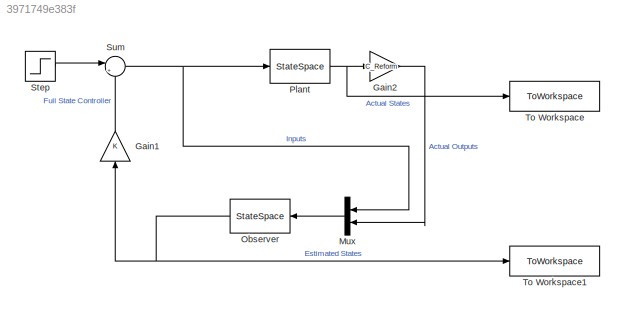
MODEL slx_3971749e383f
KIND model
CONFIG AbsTol = auto
CONFIG EnableMultiTasking = off
CONFIG FixedStep = auto
CONFIG MaxStep = auto
CONFIG MinStep = auto
CONFIG RelTol = 1e-3
CONFIG SampleTimeConstraint = Unconstrained
CONFIG Solver = VariableStepAuto
CONFIG SolverName = VariableStepAuto
CONFIG StartTime = 0.0
CONFIG StopTime = 10.0
BLOCK [Gain] Gain1
  Gain = K
  Multiplication = Matrix(K*u)
  OutDataTypeStr = Inherit: Inherit via internal rule
  ParamDataTypeStr = Inherit: Inherit via internal rule
  SaturateOnIntegerOverflow = off
BLOCK [Gain] Gain2
  Gain = C_Reform
  Multiplication = Matrix(K*u)
  OutDataTypeStr = Inherit: Inherit via internal rule
  ParamDataTypeStr = Inherit: Inherit via internal rule
  SaturateOnIntegerOverflow = off
BLOCK [Mux] Mux
  DisplayOption = bar
  Inputs = 2
  Ports = [2, 1]
BLOCK [StateSpace] Observer
  A = A_Reform-L*C_Reform
  B = [B_Reform L]
  C = eye(6)
  D = zeros(6, 9)
  InitialCondition = 0
  Ports = [1, 1]
BLOCK [StateSpace] Plant
  A = A_Reform
  B = B_Reform
  C = eye(6)
  D = D_Reform
  InitialCondition = Initial_Values
  Ports = [1, 1]
BLOCK [Step] Step
  After = 0
  SampleTime = 0
BLOCK [Sum] Sum
  IconShape = round
  InputSameDT = off
  Inputs = |+-
  OutDataTypeStr = Inherit: Inherit via internal rule
  Ports = [2, 1]
  SaturateOnIntegerOverflow = off
BLOCK [ToWorkspace] To Workspace
  FixptAsFi = on
  MaxDataPoints = inf
  Ports = [1]
  SampleTime = -1
  VariableName = act_states
BLOCK [ToWorkspace] To Workspace1
  FixptAsFi = on
  MaxDataPoints = inf
  Ports = [1]
  SampleTime = -1
  VariableName = est_states
LINE Gain1:1 -> Sum:2
LINE Gain2:1 -> Mux:2
LINE Mux:1 -> Observer:1
NET Observer:1 -> Gain1:1, To Workspace1:1
NET Plant:1 -> Gain2:1, To Workspace:1
LINE Step:1 -> Sum:1
NET Sum:1 -> Mux:1, Plant:1
note: NET lines group one-source signal fan-out (src -> all destinations, sorted); 1:1 wires keep LINE
